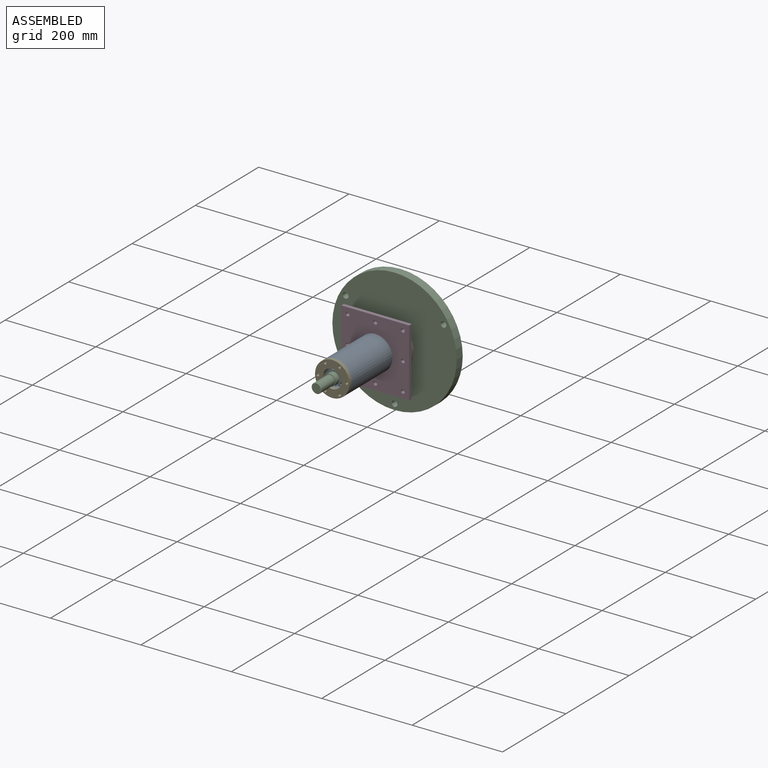
[diagram: assembled view]
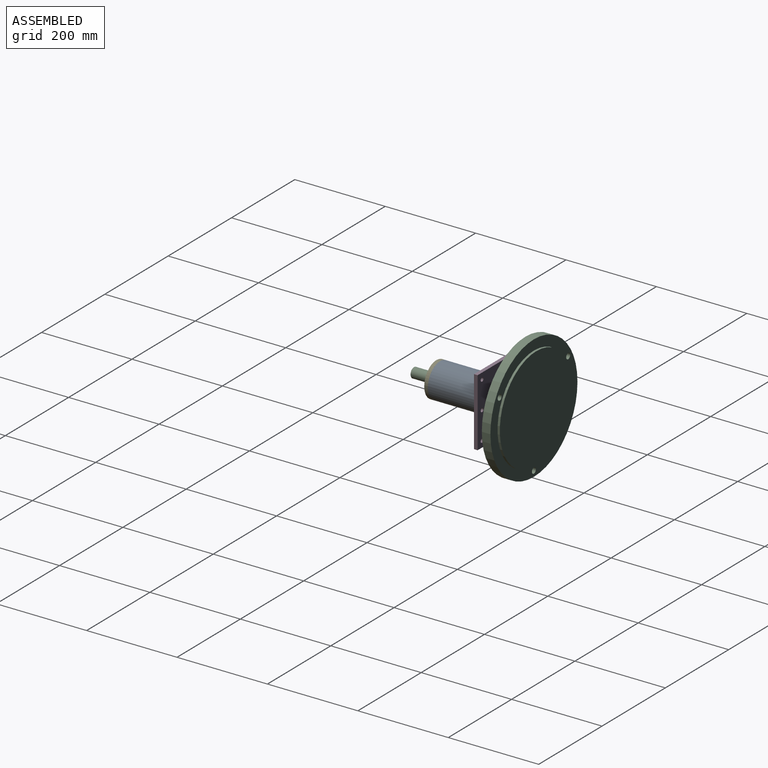
[diagram: assembled view, second angle]
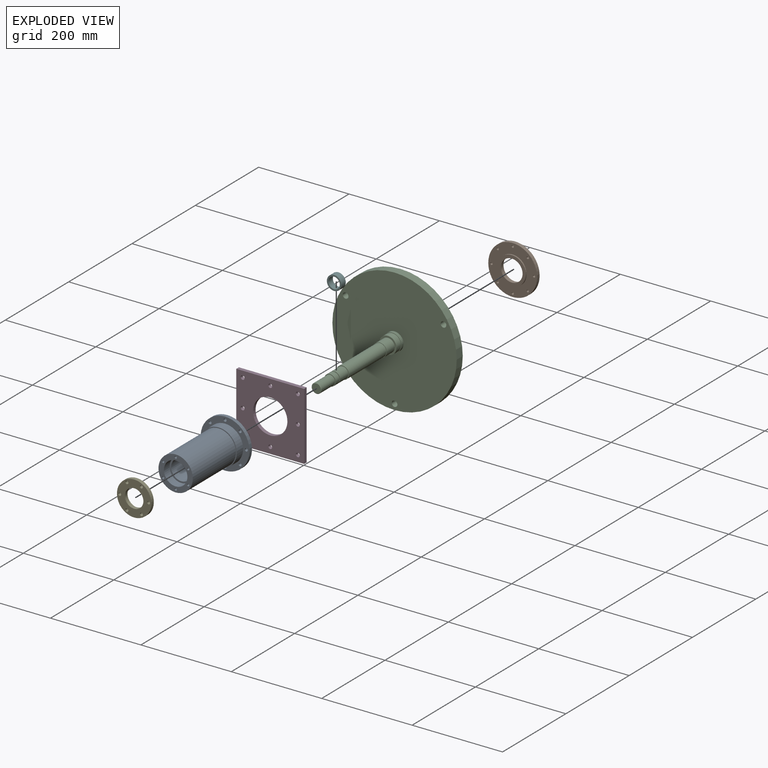
[diagram: exploded view]
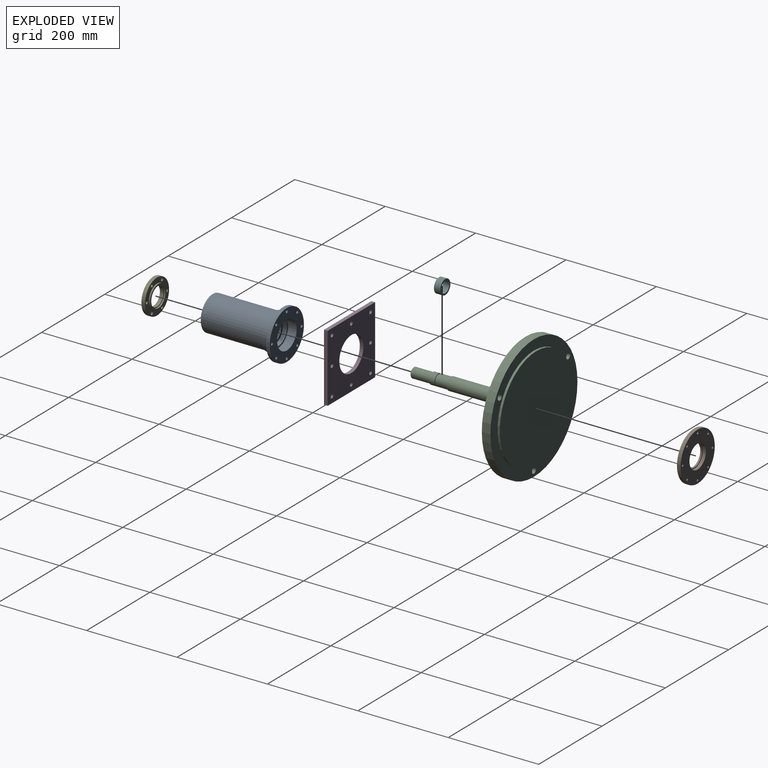
[diagram: exploded view, second angle]
ASSEMBLY  parts=6 mates=4
PART A: 34 faces, bbox 108x164x108 mm
  f0: cone r=0mm half-angle=59deg, axis (0,-1,0), area 22.9mm2, adj f1
  f1: cylinder r=2.5mm len=18mm, axis (0,-1,0), area 282.7mm2, adj f0,f18
  f2: cone r=0mm half-angle=59deg, axis (0,-1,0), area 22.9mm2, adj f3
  f3: cylinder r=2.5mm len=18mm, axis (0,-1,0), area 282.7mm2, adj f2,f18
  f4: cone r=0mm half-angle=59deg, axis (0,-1,0), area 22.9mm2, adj f5
  f5: cylinder r=2.5mm len=18mm, axis (0,-1,0), area 282.7mm2, adj f4,f18
  f6: cone r=0mm half-angle=59deg, axis (0,-1,0), area 22.9mm2, adj f7
  f7: cylinder r=2.5mm len=18mm, axis (0,-1,0), area 282.7mm2, adj f6,f18
  f8: cone r=0mm half-angle=59deg, axis (0,-1,0), area 22.9mm2, adj f9
  f9: cylinder r=2.5mm len=18mm, axis (0,-1,0), area 282.7mm2, adj f8,f18
  f10: cylinder r=3.25mm len=8mm, axis (0,1,0), area 163.4mm2, adj f22,f24
  f11: cylinder r=3.25mm len=8mm, axis (0,1,0), area 163.4mm2, adj f22,f24
  f12: cylinder r=3.25mm len=8mm, axis (0,1,0), area 163.4mm2, adj f22,f24
  f13: cylinder r=3.25mm len=8mm, axis (0,1,0), area 163.4mm2, adj f22,f24
  f14: cylinder r=3.25mm len=8mm, axis (0,1,0), area 163.4mm2, adj f22,f24
  f15: cylinder r=3.25mm len=8mm, axis (0,1,0), area 163.4mm2, adj f22,f24
  f16: cylinder r=3.25mm len=8mm, axis (0,1,0), area 163.4mm2, adj f22,f24
  f17: cylinder r=26mm len=52mm, axis (0,1,0), area 2940.5mm2, adj f18,f30
  f18: plane 76x76mm, normal (0,-1,0), area 2294.9mm2, adj f1,f3,f5,f7,f9,f17,f19,f33
  f19: cylinder r=38mm len=136mm, axis (0,1,0), area 32471.5mm2, adj f18,f20
  f20: plane 80x80mm, normal (0,-1,0), area 490.1mm2, adj f19,f21
  f21: cylinder r=40mm len=80mm, axis (0,1,0), area 5026.5mm2, adj f20,f22
  f22: plane 108x108mm, normal (0,-1,0), area 3868.9mm2, adj f10,f11,f12,f13,f14,f15,f16,f21
  f23: cylinder r=54mm len=108mm, axis (0,1,0), area 2714.3mm2, adj f22,f24
  f24: plane 108x108mm, normal (0,1,0), area 5876.3mm2, adj f10,f11,f12,f13,f14,f15,f16,f23
  f25: cylinder r=31mm len=62mm, axis (0,1,0), area 3700.8mm2, adj f24,f26
  f26: plane 62x62mm, normal (0,1,0), area 643.2mm2, adj f25,f27
  f27: cylinder r=27.5mm len=55mm, axis (0,1,0), area 1555.1mm2, adj f26,f28
  f28: plane 55x55mm, normal (0,1,0), area 785.4mm2, adj f27,f29
  f29: cylinder r=22.5mm len=118mm, axis (0,1,0), area 16681.9mm2, adj f28,f30
  f30: plane 52x52mm, normal (0,-1,0), area 533.3mm2, adj f17,f29
  f31: cylinder r=3.25mm len=8mm, axis (0,1,0), area 163.4mm2, adj f22,f24
  f32: cone r=0mm half-angle=59deg, axis (0,-1,0), area 22.9mm2, adj f33
  f33: cylinder r=2.5mm len=18mm, axis (0,-1,0), area 282.7mm2, adj f18,f32
PART B: 16 faces, bbox 11x108x108 mm
  f0: cylinder r=2.5mm len=8mm, axis (-1,0,0), area 125.7mm2, adj f8,f10
  f1: cylinder r=2.5mm len=8mm, axis (-1,0,0), area 125.7mm2, adj f8,f10
  f2: cylinder r=2.5mm len=8mm, axis (-1,0,0), area 125.7mm2, adj f8,f10
  f3: cylinder r=2.5mm len=8mm, axis (-1,0,0), area 125.7mm2, adj f8,f10
  f4: cylinder r=2.5mm len=8mm, axis (-1,0,0), area 125.7mm2, adj f8,f10
  f5: cylinder r=2.5mm len=8mm, axis (-1,0,0), area 125.7mm2, adj f8,f10
  f6: cylinder r=2.5mm len=8mm, axis (-1,0,0), area 125.7mm2, adj f8,f10
  f7: cylinder r=26mm len=52mm, axis (-1,0,0), area 1143.5mm2, adj f8,f14
  f8: plane 108x108mm, normal (-1,0,0), area 6880.1mm2, adj f0,f1,f2,f3,f4,f5,f6,f7
  f9: cylinder r=54mm len=108mm, axis (-1,0,0), area 2714.3mm2, adj f8,f10
  f10: plane 108x108mm, normal (1,0,0), area 5984.7mm2, adj f0,f1,f2,f3,f4,f5,f6,f9
  f11: cylinder r=31mm len=62mm, axis (-1,0,0), area 584.3mm2, adj f10,f12
  f12: plane 62x62mm, normal (1,0,0), area 1209.5mm2, adj f11,f13
  f13: cylinder r=24mm len=48mm, axis (-1,0,0), area 603.2mm2, adj f12,f14
  f14: plane 52x52mm, normal (-1,0,0), area 314.2mm2, adj f7,f13
  f15: cylinder r=2.5mm len=8mm, axis (-1,0,0), area 125.7mm2, adj f8,f10
PART C: 25 faces, bbox 271x275x275 mm
  f0: cylinder r=6.25mm len=19mm, axis (-1,0,0), area 746.1mm2, adj f6,f8
  f1: cylinder r=6.25mm len=19mm, axis (-1,0,0), area 746.1mm2, adj f6,f8
  f2: cylinder r=11mm len=42mm, axis (-1,0,0), area 2902.8mm2, adj f22,f24
  f3: plane 20x20mm, normal (1,0,0), area 314.2mm2, adj f24
  f4: plane 230x230mm, normal (-1,0,0), area 41547.6mm2, adj f5
  f5: cylinder r=115mm len=230mm, axis (-1,0,0), area 3612.8mm2, adj f4,f6
  f6: plane 275x275mm, normal (-1,0,0), area 17480mm2, adj f0,f1,f5,f7,f23
  f7: cylinder r=137.5mm len=275mm, axis (-1,0,0), area 16414.8mm2, adj f6,f8
  f8: plane 275x275mm, normal (1,0,0), area 57770.9mm2, adj f0,f1,f7,f9,f23
  f9: cylinder r=20mm len=40mm, axis (-1,0,0), area 879.6mm2, adj f8,f10
  f10: plane 40x40mm, normal (1,0,0), area 122.5mm2, adj f9,f11
  f11: cylinder r=19mm len=38mm, axis (-1,0,0), area 1671.3mm2, adj f10,f12
  f12: plane 38x38mm, normal (1,0,0), area 427.3mm2, adj f11,f13
  f13: cylinder r=15mm len=30mm, axis (-1,0,0), area 2356.2mm2, adj f12,f14
  f14: plane 30x30mm, normal (1,0,0), area 91.1mm2, adj f13,f15
  f15: cylinder r=14mm len=118mm, axis (-1,0,0), area 10379.8mm2, adj f14,f16
  f16: plane 28x28mm, normal (1,0,0), area 124.9mm2, adj f15,f17
  f17: cylinder r=12.5mm len=26mm, axis (-1,0,0), area 2042mm2, adj f16,f18
  f18: plane 25x25mm, normal (1,0,0), area 110.7mm2, adj f17,f19
  f19: cylinder r=11mm len=22mm, axis (-1,0,0), area 137.8mm2, adj f18,f20
  f20: plane 25x25mm, normal (-1,0,0), area 110.7mm2, adj f19,f21
  f21: cylinder r=12.5mm len=25mm, axis (-1,0,0), area 942.9mm2, adj f20,f22
  f22: plane 25x25mm, normal (1,0,0), area 110.7mm2, adj f2,f21
  f23: cylinder r=6.25mm len=19mm, axis (-1,0,0), area 746.1mm2, adj f6,f8
  f24: cone r=11mm half-angle=45deg, axis (-1,0,0), area 93.3mm2, adj f2,f3
PART D: 15 faces, bbox 150x150x8 mm
  f0: plane 150x8mm, normal (1,0,0), area 1200mm2, adj f1,f11,f13,f14
  f1: plane 150x8mm, normal (0,1,0), area 1200mm2, adj f0,f2,f13,f14
  f2: plane 150x8mm, normal (-1,0,0), area 1200mm2, adj f1,f11,f13,f14
  f3: cylinder r=4.25mm len=8.5mm, axis (0,0,-1), area 213.6mm2, adj f13,f14
  f4: cylinder r=4.25mm len=8.5mm, axis (0,0,-1), area 213.6mm2, adj f13,f14
  f5: cylinder r=4.25mm len=8.5mm, axis (0,0,-1), area 213.6mm2, adj f13,f14
  f6: cylinder r=4.25mm len=8.5mm, axis (0,0,-1), area 213.6mm2, adj f13,f14
  f7: cylinder r=4.25mm len=8.5mm, axis (0,0,-1), area 213.6mm2, adj f13,f14
  f8: cylinder r=4.25mm len=8.5mm, axis (0,0,-1), area 213.6mm2, adj f13,f14
  f9: cylinder r=4.25mm len=8.5mm, axis (0,0,-1), area 213.6mm2, adj f13,f14
  f10: cylinder r=38mm len=76mm, axis (0,0,-1), area 1910.1mm2, adj f13,f14
  f11: plane 150x8mm, normal (0,-1,0), area 1200mm2, adj f0,f2,f13,f14
  f12: cylinder r=4.25mm len=8.5mm, axis (0,0,-1), area 213.6mm2, adj f13,f14
  f13: plane 150x150mm, normal (0,0,1), area 17509.6mm2, adj f0,f1,f2,f3,f4,f5,f6,f7
  f14: plane 150x150mm, normal (0,0,-1), area 17509.6mm2, adj f0,f1,f2,f3,f4,f5,f6,f7
PART E: 14 faces, bbox 11x76x76 mm
  f0: cylinder r=3.25mm len=8mm, axis (-1,0,0), area 163.4mm2, adj f6,f8
  f1: cylinder r=3.25mm len=8mm, axis (-1,0,0), area 163.4mm2, adj f6,f8
  f2: cylinder r=3.25mm len=8mm, axis (-1,0,0), area 163.4mm2, adj f6,f8
  f3: cylinder r=3.25mm len=8mm, axis (-1,0,0), area 163.4mm2, adj f6,f8
  f4: cylinder r=3.25mm len=8mm, axis (-1,0,0), area 163.4mm2, adj f6,f8
  f5: cylinder r=20.5mm len=41mm, axis (-1,0,0), area 1030.4mm2, adj f6,f12
  f6: plane 76x76mm, normal (-1,0,0), area 3017.1mm2, adj f0,f1,f2,f3,f4,f5,f7,f13
  f7: cylinder r=38mm len=76mm, axis (-1,0,0), area 1910.1mm2, adj f6,f8
  f8: plane 76x76mm, normal (1,0,0), area 2213.6mm2, adj f0,f1,f2,f3,f4,f7,f9,f13
  f9: cylinder r=26mm len=52mm, axis (-1,0,0), area 490.1mm2, adj f8,f10
  f10: plane 52x52mm, normal (1,0,0), area 533.3mm2, adj f9,f11
  f11: cylinder r=22.5mm len=45mm, axis (-1,0,0), area 424.1mm2, adj f10,f12
  f12: plane 45x45mm, normal (1,0,0), area 270.2mm2, adj f5,f11
  f13: cylinder r=3.25mm len=8mm, axis (-1,0,0), area 163.4mm2, adj f6,f8
PART F: 4 faces, bbox 14x32x32 mm
  f0: cylinder r=12.5mm len=25mm, axis (-1,0,0), area 1099.6mm2, adj f2,f3
  f1: cylinder r=16mm len=32mm, axis (-1,0,0), area 1407.4mm2, adj f2,f3
  f2: plane 32x32mm, normal (1,0,0), area 313.4mm2, adj f0,f1
  f3: plane 32x32mm, normal (-1,0,0), area 313.4mm2, adj f0,f1
PLACE A t=(7.88,-113.19,19.29)mm
PLACE B rot(axis=(0.58,-0.58,-0.58),120deg) t=(7.88,58.81,19.29)mm
PLACE C rot(axis=(0.71,-0.71,0),180deg) t=(7.88,99.81,19.29)mm
PLACE D rot(axis=(-1,0,0),90deg) t=(7.88,14.81,19.29)mm
PLACE E rot(axis=(-0.58,-0.58,0.58),120deg) t=(7.88,-121.19,19.29)mm
PLACE F rot(axis=(0.71,-0.71,0),180deg) t=(7.88,-101.19,19.29)mm
MATE fastened D.f10 <-> A.f17  axis (0,1,0) through (7.88,22.81,19.29)mm
MATE fastened E.f5 <-> A.f17  axis (0,1,0) through (7.88,-113.19,19.29)mm
MATE fastened F.f0 <-> C.f2  axis (0,1,0) through (7.88,-101.19,19.29)mm
MATE fastened B.f7 <-> A.f17  axis (0,-1,0) through (7.88,50.81,19.29)mm
